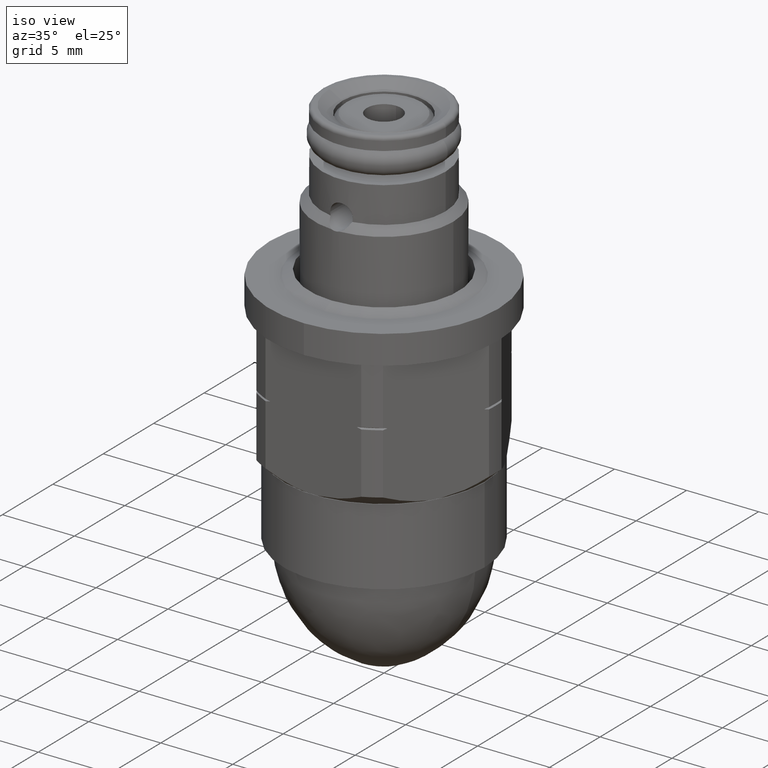
[diagram: clean part render]
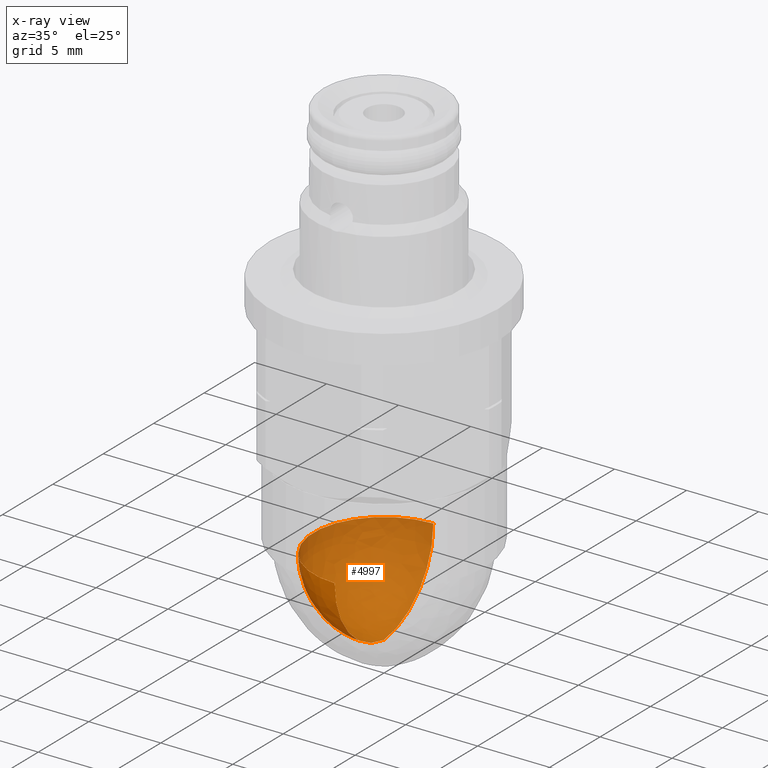
[diagram: x-ray — body ghosted, one internal face saturated and labeled with its STEP entity id]
A machine part, iso view, then the same camera in x-ray: the body is ghosted and one INTERNAL B-rep face — a face not visible from any outside direction — is saturated and labeled: STEP entity #4997.
In plain terms, the highlighted face is a freeform B-spline surface patch.
Its self-contained STEP definition (entity closure, byte-faithful):
#4487=CARTESIAN_POINT('',(0.E0,0.E0,-1.547318639755E1));
#4488=DIRECTION('',(0.E0,0.E0,1.E0));
#4489=DIRECTION('',(0.E0,1.E0,0.E0));
#4490=AXIS2_PLACEMENT_3D('',#4487,#4488,#4489);
#4497=CARTESIAN_POINT('',(0.E0,-5.715E-1,-1.547318639755E1));
#4498=DIRECTION('',(1.E0,0.E0,0.E0));
#4499=DIRECTION('',(0.E0,1.046511627907E-1,-9.945089914760E-1));
#4500=AXIS2_PLACEMENT_3D('',#4497,#4498,#4499);
#4502=CARTESIAN_POINT('',(0.E0,5.715E-1,-1.547318639755E1));
#4503=DIRECTION('',(-1.E0,0.E0,0.E0));
#4504=DIRECTION('',(0.E0,-1.046511627907E-1,-9.945089914760E-1));
#4505=AXIS2_PLACEMENT_3D('',#4502,#4503,#4504);
#4521=CARTESIAN_POINT('',(0.E0,0.E0,-2.09042E1));
#4522=CARTESIAN_POINT('',(0.E0,4.8895E0,-1.547318639755E1));
#4523=VERTEX_POINT('',#4521);
#4524=VERTEX_POINT('',#4522);
#4525=CARTESIAN_POINT('',(0.E0,-4.8895E0,-1.547318639755E1));
#4526=VERTEX_POINT('',#4525);
#4961=CARTESIAN_POINT('',(0.E0,0.E0,-2.09042E1));
#4962=CARTESIAN_POINT('',(1.879994418704E-1,2.988165559431E0,
-2.058913669261E1));
#4963=CARTESIAN_POINT('',(3.124084835148E-1,4.965590650829E0,
-1.832240898805E1));
#4964=CARTESIAN_POINT('',(3.068668765064E-1,4.877509329728E0,
-1.531309792738E1));
#4965=CARTESIAN_POINT('',(0.E0,0.E0,-2.09042E1));
#4966=CARTESIAN_POINT('',(-1.650913451896E0,3.103860152251E0,
-2.058913669261E1));
#4967=CARTESIAN_POINT('',(-2.743409037760E0,5.157846393368E0,
-1.832240898805E1));
#4968=CARTESIAN_POINT('',(-2.694745523314E0,5.066354775088E0,
-1.531309792738E1));
#4969=CARTESIAN_POINT('',(0.E0,0.E0,-2.09042E1));
#4970=CARTESIAN_POINT('',(-2.994073679907E0,1.842548742820E0,
-2.058913669261E1));
#4971=CARTESIAN_POINT('',(-4.975408482946E0,3.061859401388E0,
-1.832240898805E1));
#4972=CARTESIAN_POINT('',(-4.887153009829E0,3.007547107028E0,
-1.531309792738E1));
#4973=CARTESIAN_POINT('',(0.E0,0.E0,-2.09042E1));
#4974=CARTESIAN_POINT('',(-2.994073679907E0,0.E0,-2.058913669261E1));
#4975=CARTESIAN_POINT('',(-4.975408482946E0,0.E0,-1.832240898805E1));
#4976=CARTESIAN_POINT('',(-4.887153009829E0,0.E0,-1.531309792738E1));
#4977=CARTESIAN_POINT('',(0.E0,0.E0,-2.09042E1));
#4978=CARTESIAN_POINT('',(-2.994073679907E0,-1.842548742820E0,
-2.058913669261E1));
#4979=CARTESIAN_POINT('',(-4.975408482946E0,-3.061859401388E0,
-1.832240898805E1));
#4980=CARTESIAN_POINT('',(-4.887153009829E0,-3.007547107028E0,
-1.531309792738E1));
#4981=CARTESIAN_POINT('',(0.E0,0.E0,-2.09042E1));
#4982=CARTESIAN_POINT('',(-1.650913451896E0,-3.103860152251E0,
-2.058913669261E1));
#4983=CARTESIAN_POINT('',(-2.743409037760E0,-5.157846393368E0,
-1.832240898805E1));
#4984=CARTESIAN_POINT('',(-2.694745523314E0,-5.066354775087E0,
-1.531309792738E1));
#4985=CARTESIAN_POINT('',(0.E0,0.E0,-2.09042E1));
#4986=CARTESIAN_POINT('',(1.879994418704E-1,-2.988165559431E0,
-2.058913669261E1));
#4987=CARTESIAN_POINT('',(3.124084835148E-1,-4.965590650829E0,
-1.832240898805E1));
#4988=CARTESIAN_POINT('',(3.068668765064E-1,-4.877509329728E0,
-1.531309792738E1));
#4989=(BOUNDED_SURFACE()B_SPLINE_SURFACE(3,3,((#4961,#4962,#4963,#4964),(#4965,
#4966,#4967,#4968),(#4969,#4970,#4971,#4972),(#4973,#4974,#4975,#4976),(#4977,
#4978,#4979,#4980),(#4981,#4982,#4983,#4984),(#4985,#4986,#4987,#4988)),
.UNSPECIFIED.,.F.,.F.,.F.)B_SPLINE_SURFACE_WITH_KNOTS((4,3,4),(4,4),(0.E0,1.E0,
2.E0),(0.E0,1.E0),.UNSPECIFIED.)GEOMETRIC_REPRESENTATION_ITEM()RATIONAL_B_SPLINE_SURFACE(((1.369946361605E0,1.126368189457E0,1.126368189457E0,1.369946361605E0),(
1.081843998611E0,8.894907860211E-1,8.894907860211E-1,1.081843998611E0),(
1.081843998611E0,8.894907860211E-1,8.894907860211E-1,1.081843998611E0),(
1.369946361605E0,1.126368189457E0,1.126368189457E0,1.369946361605E0),(
1.081843998611E0,8.894907860211E-1,8.894907860211E-1,1.081843998611E0),(
1.081843998611E0,8.894907860211E-1,8.894907860211E-1,1.081843998611E0),(
1.369946361605E0,1.126368189457E0,1.126368189457E0,1.369946361605E0)))REPRESENTATION_ITEM('')SURFACE());
#4991=ORIENTED_EDGE('',*,*,#4990,.F.);
#4993=ORIENTED_EDGE('',*,*,#4992,.T.);
#4994=ORIENTED_EDGE('',*,*,#4947,.F.);
#4995=EDGE_LOOP('',(#4991,#4993,#4994));
#4996=FACE_OUTER_BOUND('',#4995,.F.);
#4997=ADVANCED_FACE('',(#4996),#4989,.F.);
#4491=CIRCLE('',#4490,4.8895E0);
#4501=CIRCLE('',#4500,5.461E0);
#4506=CIRCLE('',#4505,5.461E0);
#4947=EDGE_CURVE('',#4524,#4526,#4491,.T.);
#4990=EDGE_CURVE('',#4523,#4524,#4501,.T.);
#4992=EDGE_CURVE('',#4523,#4526,#4506,.T.);